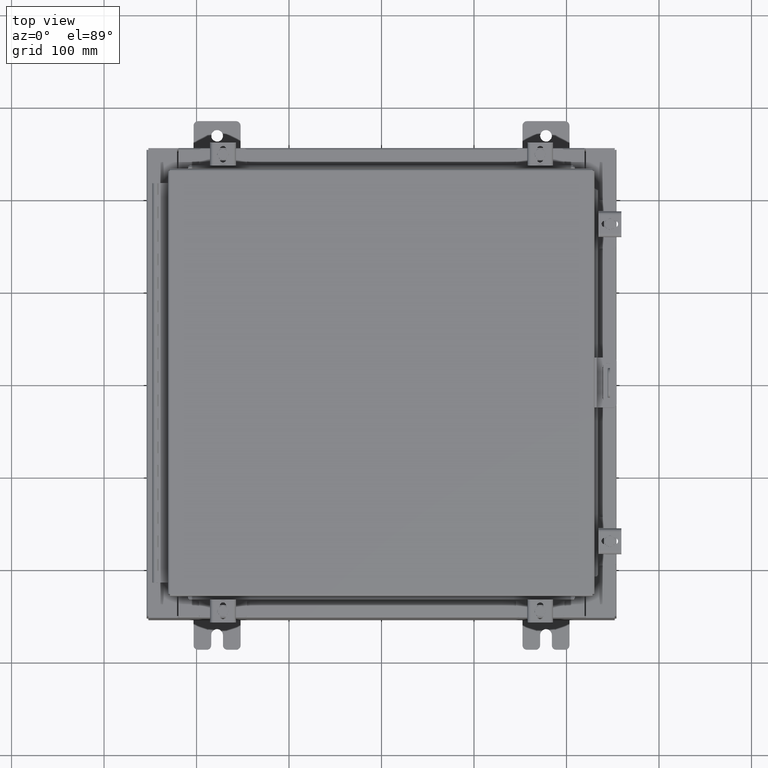
[diagram: clean part render]
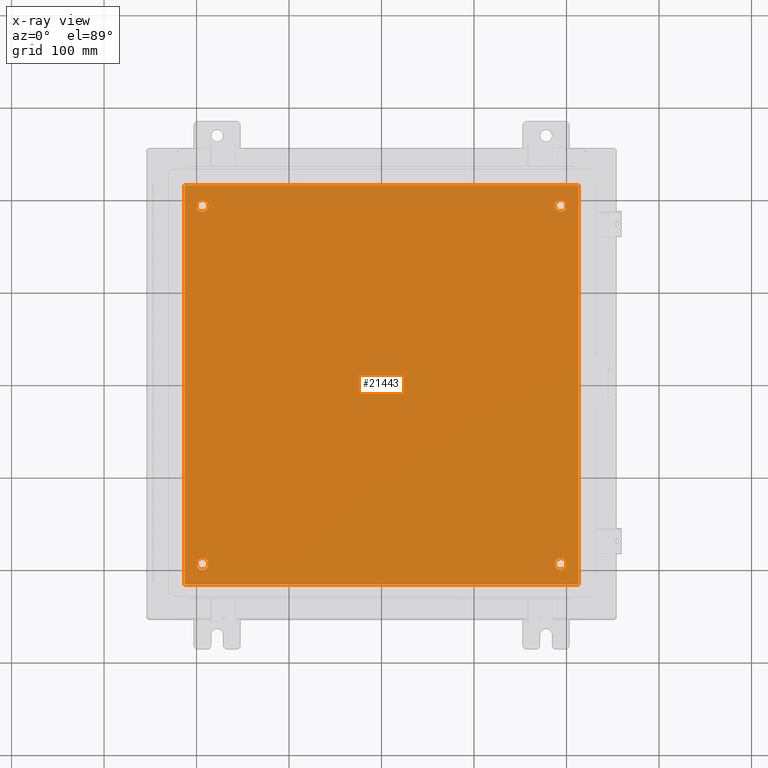
[diagram: x-ray — body ghosted, one internal face saturated and labeled with its STEP entity id]
A machine part, top view, then the same camera in x-ray: the body is ghosted and one INTERNAL B-rep face — a face not visible from any outside direction — is saturated and labeled: STEP entity #21443.
In plain terms, the highlighted planar face has unit normal (0, 0, -1).
Its self-contained STEP definition (entity closure, byte-faithful):
#33 = AXIS2_PLACEMENT_3D ( 'NONE', #21989, #8366, #24230 ) ;
#143 = ORIENTED_EDGE ( 'NONE', *, *, #11626, .T. ) ;
#216 = DIRECTION ( 'NONE',  ( -1.000000000000000000, 0.0000000000000000000, 0.0000000000000000000 ) ) ;
#700 = FACE_BOUND ( 'NONE', #16765, .T. ) ;
#870 = EDGE_CURVE ( 'NONE', #28696, #5931, #22100, .T. ) ;
#1648 = ORIENTED_EDGE ( 'NONE', *, *, #3988, .T. ) ;
#2085 = CARTESIAN_POINT ( 'NONE',  ( 7.375000000000003600, -7.625000000000000900, -0.1039999999999999800 ) ) ;
#2129 = FACE_BOUND ( 'NONE', #29383, .T. ) ;
#2443 = CARTESIAN_POINT ( 'NONE',  ( -7.875000000000001800, -7.625000000000000900, -0.1039999999999999800 ) ) ;
#2844 = CARTESIAN_POINT ( 'NONE',  ( -7.375000000000001800, -7.625000000000000900, -0.1039999999999999800 ) ) ;
#2952 = DIRECTION ( 'NONE',  ( -0.0000000000000000000, -0.0000000000000000000, 1.000000000000000000 ) ) ;
#3467 = ORIENTED_EDGE ( 'NONE', *, *, #12418, .T. ) ;
#3478 = DIRECTION ( 'NONE',  ( -0.0000000000000000000, -0.0000000000000000000, 1.000000000000000000 ) ) ;
#3988 = EDGE_CURVE ( 'NONE', #27805, #11077, #15246, .T. ) ;
#4294 = CARTESIAN_POINT ( 'NONE',  ( 7.625000000000001800, -7.625000000000000900, -0.1039999999999999800 ) ) ;
#4449 = CARTESIAN_POINT ( 'NONE',  ( -7.375000000000001800, 7.625000000000000900, -0.1039999999999999800 ) ) ;
#4705 = VERTEX_POINT ( 'NONE', #11252 ) ;
#5931 = VERTEX_POINT ( 'NONE', #2443 ) ;
#5987 = VECTOR ( 'NONE', #16777, 39.37007874015748100 ) ;
#6524 = CARTESIAN_POINT ( 'NONE',  ( 8.383000000000000900, 8.500000000000000000, -0.1039999999999999800 ) ) ;
#6583 = DIRECTION ( 'NONE',  ( -1.000000000000000000, 0.0000000000000000000, 0.0000000000000000000 ) ) ;
#6770 = FACE_BOUND ( 'NONE', #14466, .T. ) ;
#6858 = CIRCLE ( 'NONE', #23289, 0.2499999999999998100 ) ;
#7220 = VERTEX_POINT ( 'NONE', #27109 ) ;
#7234 = AXIS2_PLACEMENT_3D ( 'NONE', #18042, #29494, #28118 ) ;
#7387 = ORIENTED_EDGE ( 'NONE', *, *, #17530, .T. ) ;
#8104 = VERTEX_POINT ( 'NONE', #18623 ) ;
#8124 = ORIENTED_EDGE ( 'NONE', *, *, #22902, .F. ) ;
#8153 = DIRECTION ( 'NONE',  ( -0.0000000000000000000, -0.0000000000000000000, 1.000000000000000000 ) ) ;
#8366 = DIRECTION ( 'NONE',  ( -0.0000000000000000000, -0.0000000000000000000, 1.000000000000000000 ) ) ;
#8491 = CARTESIAN_POINT ( 'NONE',  ( -8.500000000000000000, -8.499999999999998200, -0.1039999999999999800 ) ) ;
#9394 = CARTESIAN_POINT ( 'NONE',  ( 7.375000000000003600, 7.625000000000000900, -0.1039999999999999800 ) ) ;
#9462 = CARTESIAN_POINT ( 'NONE',  ( -7.625000000000001800, -7.625000000000000900, -0.1039999999999999800 ) ) ;
#10214 = VERTEX_POINT ( 'NONE', #17553 ) ;
#10780 = DIRECTION ( 'NONE',  ( 1.000000000000000000, 0.0000000000000000000, 0.0000000000000000000 ) ) ;
#10906 = PLANE ( 'NONE',  #26339 ) ;
#11077 = VERTEX_POINT ( 'NONE', #15956 ) ;
#11252 = CARTESIAN_POINT ( 'NONE',  ( -8.382999999999999100, -8.499999999999998200, -0.1039999999999998100 ) ) ;
#11626 = EDGE_CURVE ( 'NONE', #5931, #28696, #11879, .T. ) ;
#11879 = CIRCLE ( 'NONE', #11971, 0.2499999999999998100 ) ;
#11971 = AXIS2_PLACEMENT_3D ( 'NONE', #27476, #13824, #216 ) ;
#12025 = LINE ( 'NONE', #25812, #5987 ) ;
#12349 = EDGE_CURVE ( 'NONE', #23810, #12384, #20360, .T. ) ;
#12384 = VERTEX_POINT ( 'NONE', #26220 ) ;
#12418 = EDGE_CURVE ( 'NONE', #8104, #25045, #6858, .T. ) ;
#12788 = VECTOR ( 'NONE', #10780, 39.37007874015748100 ) ;
#12802 = DIRECTION ( 'NONE',  ( -0.0000000000000000000, -0.0000000000000000000, 1.000000000000000000 ) ) ;
#12810 = ORIENTED_EDGE ( 'NONE', *, *, #21964, .F. ) ;
#13824 = DIRECTION ( 'NONE',  ( -0.0000000000000000000, -0.0000000000000000000, 1.000000000000000000 ) ) ;
#14466 = EDGE_LOOP ( 'NONE', ( #7387, #1648 ) ) ;
#14759 = EDGE_LOOP ( 'NONE', ( #12810, #25848, #8124, #18018 ) ) ;
#14777 = CIRCLE ( 'NONE', #27809, 0.2499999999999987000 ) ;
#14875 = ORIENTED_EDGE ( 'NONE', *, *, #20165, .T. ) ;
#15098 = VECTOR ( 'NONE', #16431, 39.37007874015748100 ) ;
#15246 = CIRCLE ( 'NONE', #7234, 0.2499999999999987000 ) ;
#15462 = DIRECTION ( 'NONE',  ( -1.000000000000000000, 0.0000000000000000000, -0.0000000000000000000 ) ) ;
#15681 = AXIS2_PLACEMENT_3D ( 'NONE', #17065, #3478, #19374 ) ;
#15942 = ORIENTED_EDGE ( 'NONE', *, *, #20692, .T. ) ;
#15956 = CARTESIAN_POINT ( 'NONE',  ( 7.875000000000000900, -7.625000000000000900, -0.1039999999999999800 ) ) ;
#16431 = DIRECTION ( 'NONE',  ( 0.0000000000000000000, -1.000000000000000000, 0.0000000000000000000 ) ) ;
#16571 = CARTESIAN_POINT ( 'NONE',  ( -7.625000000000001800, 7.625000000000000900, -0.1039999999999999800 ) ) ;
#16634 = VECTOR ( 'NONE', #28333, 39.37007874015748100 ) ;
#16765 = EDGE_LOOP ( 'NONE', ( #14875, #3467 ) ) ;
#16777 = DIRECTION ( 'NONE',  ( -1.000000000000000000, -0.0000000000000000000, -0.0000000000000000000 ) ) ;
#17065 = CARTESIAN_POINT ( 'NONE',  ( 7.625000000000001800, 7.625000000000000900, -0.1039999999999999800 ) ) ;
#17530 = EDGE_CURVE ( 'NONE', #11077, #27805, #14777, .T. ) ;
#17553 = CARTESIAN_POINT ( 'NONE',  ( 8.383000000000000900, -8.499999999999998200, -0.1039999999999999800 ) ) ;
#18018 = ORIENTED_EDGE ( 'NONE', *, *, #22958, .F. ) ;
#18042 = CARTESIAN_POINT ( 'NONE',  ( 7.625000000000001800, -7.625000000000000900, -0.1039999999999999800 ) ) ;
#18185 = AXIS2_PLACEMENT_3D ( 'NONE', #9462, #8153, #19658 ) ;
#18623 = CARTESIAN_POINT ( 'NONE',  ( -7.875000000000001800, 7.625000000000000900, -0.1039999999999999800 ) ) ;
#18730 = VERTEX_POINT ( 'NONE', #6524 ) ;
#18823 = LINE ( 'NONE', #8491, #12788 ) ;
#18846 = DIRECTION ( 'NONE',  ( -1.000000000000000000, 0.0000000000000000000, 0.0000000000000000000 ) ) ;
#18849 = FACE_BOUND ( 'NONE', #26296, .T. ) ;
#19173 = CARTESIAN_POINT ( 'NONE',  ( 8.383000000000000900, -8.499999999999998200, -0.1039999999999998100 ) ) ;
#19374 = DIRECTION ( 'NONE',  ( -1.000000000000000000, 0.0000000000000000000, 0.0000000000000000000 ) ) ;
#19658 = DIRECTION ( 'NONE',  ( -1.000000000000000000, 0.0000000000000000000, 0.0000000000000000000 ) ) ;
#20165 = EDGE_CURVE ( 'NONE', #25045, #8104, #22139, .T. ) ;
#20191 = DIRECTION ( 'NONE',  ( -0.0000000000000000000, -0.0000000000000000000, 1.000000000000000000 ) ) ;
#20360 = CIRCLE ( 'NONE', #15681, 0.2499999999999987000 ) ;
#20692 = EDGE_CURVE ( 'NONE', #12384, #23810, #25270, .T. ) ;
#21443 = ADVANCED_FACE ( 'NONE', ( #2129, #6770, #18849, #700, #24169 ), #10906, .T. ) ;
#21575 = AXIS2_PLACEMENT_3D ( 'NONE', #16571, #2952, #18846 ) ;
#21872 = LINE ( 'NONE', #27782, #15098 ) ;
#21943 = ORIENTED_EDGE ( 'NONE', *, *, #12349, .T. ) ;
#21964 = EDGE_CURVE ( 'NONE', #4705, #10214, #18823, .T. ) ;
#21989 = CARTESIAN_POINT ( 'NONE',  ( 7.625000000000001800, 7.625000000000000900, -0.1039999999999999800 ) ) ;
#22100 = CIRCLE ( 'NONE', #18185, 0.2499999999999998100 ) ;
#22139 = CIRCLE ( 'NONE', #21575, 0.2499999999999998100 ) ;
#22682 = LINE ( 'NONE', #19173, #16634 ) ;
#22902 = EDGE_CURVE ( 'NONE', #18730, #7220, #12025, .T. ) ;
#22958 = EDGE_CURVE ( 'NONE', #10214, #18730, #22682, .T. ) ;
#23289 = AXIS2_PLACEMENT_3D ( 'NONE', #26407, #12802, #28719 ) ;
#23810 = VERTEX_POINT ( 'NONE', #9394 ) ;
#24169 = FACE_OUTER_BOUND ( 'NONE', #14759, .T. ) ;
#24230 = DIRECTION ( 'NONE',  ( -1.000000000000000000, 0.0000000000000000000, 0.0000000000000000000 ) ) ;
#25045 = VERTEX_POINT ( 'NONE', #4449 ) ;
#25270 = CIRCLE ( 'NONE', #33, 0.2499999999999987000 ) ;
#25734 = EDGE_CURVE ( 'NONE', #7220, #4705, #21872, .T. ) ;
#25812 = CARTESIAN_POINT ( 'NONE',  ( -8.500000000000000000, 8.500000000000000000, -0.1039999999999999800 ) ) ;
#25848 = ORIENTED_EDGE ( 'NONE', *, *, #25734, .F. ) ;
#25902 = ORIENTED_EDGE ( 'NONE', *, *, #870, .T. ) ;
#26220 = CARTESIAN_POINT ( 'NONE',  ( 7.875000000000000900, 7.625000000000000900, -0.1039999999999999800 ) ) ;
#26296 = EDGE_LOOP ( 'NONE', ( #15942, #21943 ) ) ;
#26339 = AXIS2_PLACEMENT_3D ( 'NONE', #26784, #29096, #15462 ) ;
#26407 = CARTESIAN_POINT ( 'NONE',  ( -7.625000000000001800, 7.625000000000000900, -0.1039999999999999800 ) ) ;
#26784 = CARTESIAN_POINT ( 'NONE',  ( 0.0000000000000000000, 0.0000000000000000000, -0.1039999999999999800 ) ) ;
#27109 = CARTESIAN_POINT ( 'NONE',  ( -8.382999999999999100, 8.500000000000000000, -0.1039999999999998100 ) ) ;
#27476 = CARTESIAN_POINT ( 'NONE',  ( -7.625000000000001800, -7.625000000000000900, -0.1039999999999999800 ) ) ;
#27782 = CARTESIAN_POINT ( 'NONE',  ( -8.382999999999999100, 8.500000000000000000, -0.1039999999999998100 ) ) ;
#27805 = VERTEX_POINT ( 'NONE', #2085 ) ;
#27809 = AXIS2_PLACEMENT_3D ( 'NONE', #4294, #20191, #6583 ) ;
#28118 = DIRECTION ( 'NONE',  ( -1.000000000000000000, 0.0000000000000000000, 0.0000000000000000000 ) ) ;
#28333 = DIRECTION ( 'NONE',  ( 0.0000000000000000000, 1.000000000000000000, 0.0000000000000000000 ) ) ;
#28696 = VERTEX_POINT ( 'NONE', #2844 ) ;
#28719 = DIRECTION ( 'NONE',  ( -1.000000000000000000, 0.0000000000000000000, 0.0000000000000000000 ) ) ;
#29096 = DIRECTION ( 'NONE',  ( 0.0000000000000000000, 0.0000000000000000000, -1.000000000000000000 ) ) ;
#29383 = EDGE_LOOP ( 'NONE', ( #25902, #143 ) ) ;
#29494 = DIRECTION ( 'NONE',  ( -0.0000000000000000000, -0.0000000000000000000, 1.000000000000000000 ) ) ;